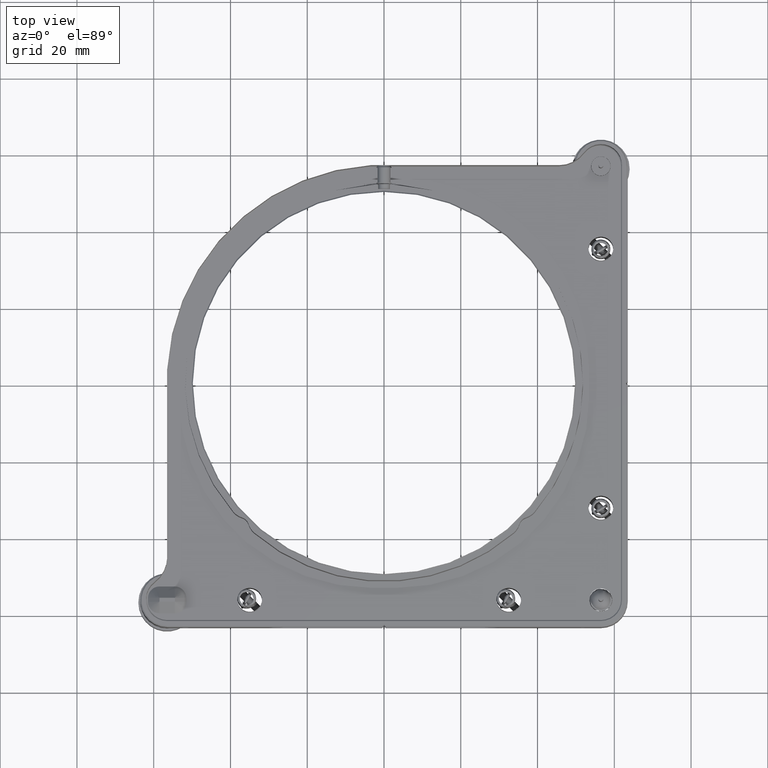
[diagram: clean part render]
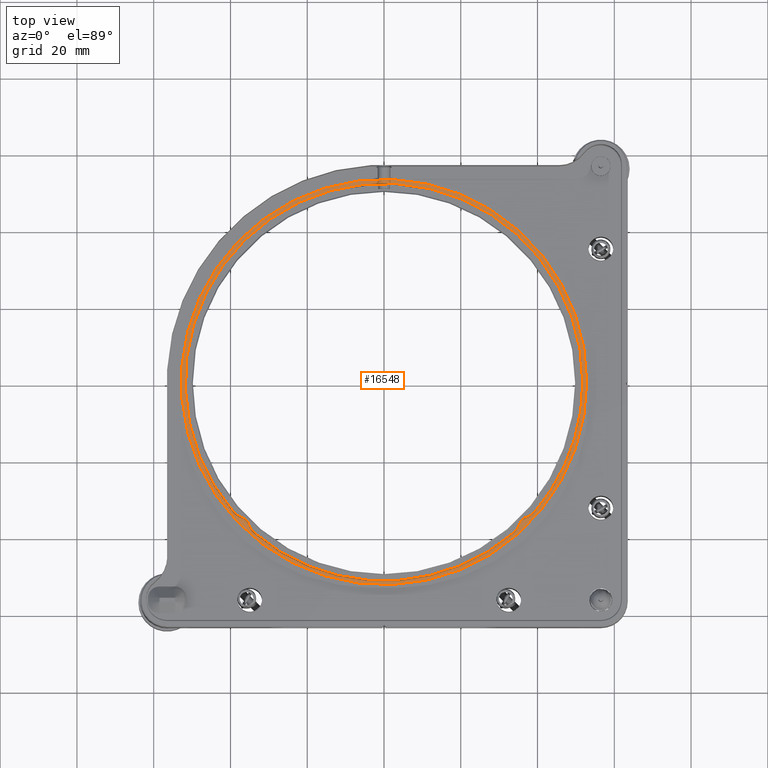
[diagram: same view with one face highlighted and labeled with its STEP entity id]
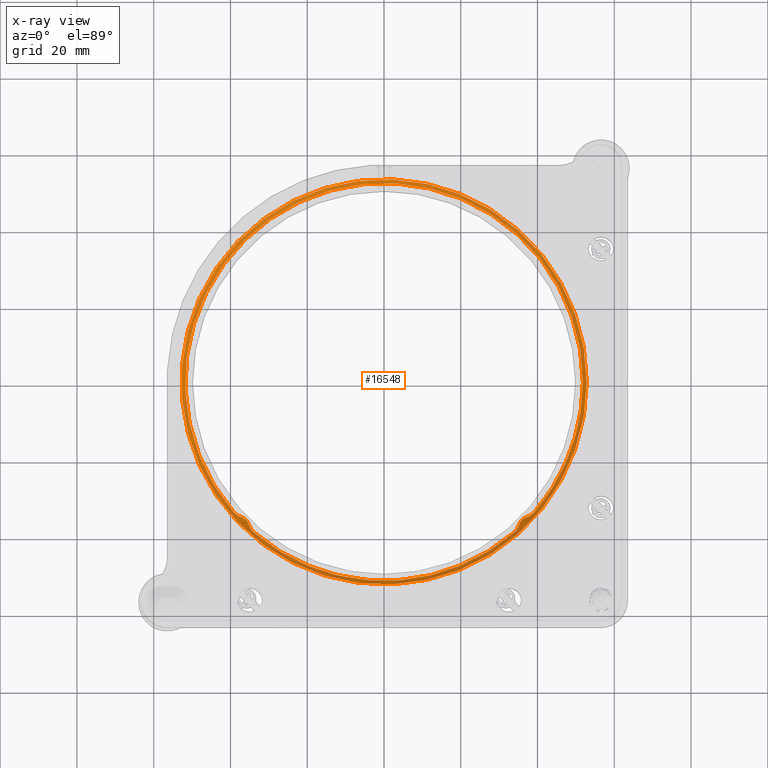
[diagram: x-ray of the same camera — body ghosted, the highlighted face saturated]
A machine part, top view. The second image highlights one B-rep face of the part: STEP entity #16548.
The next image is the same camera in x-ray: the body ghosted, the highlighted face saturated — about 0% of this face is hidden behind the body in this view.
In plain terms, the highlighted conical surface has half-angle 45 deg.
Its self-contained STEP definition (entity closure, byte-faithful):
#89 = DIRECTION ( 'NONE',  ( 1.000000000000000000, 0.000000000000000000, 0.000000000000000000 ) ) ;
#95 = CARTESIAN_POINT ( 'NONE',  ( 35.29995757403091261, -36.95158537787364139, 27.29818409675190694 ) ) ;
#217 = DIRECTION ( 'NONE',  ( -0.000000000000000000, -0.000000000000000000, -1.000000000000000000 ) ) ;
#420 = VERTEX_POINT ( 'NONE', #18705 ) ;
#430 = CARTESIAN_POINT ( 'NONE',  ( -39.26746954750443308, -33.78321825012833557, 27.99528137423851959 ) ) ;
#544 = VERTEX_POINT ( 'NONE', #4366 ) ;
#757 = CARTESIAN_POINT ( 'NONE',  ( -37.37060875329012788, -35.15547113101442989, 27.50244854800109451 ) ) ;
#868 = CARTESIAN_POINT ( 'NONE',  ( -38.94667884476185549, -34.15608501071348968, 27.99528137423852314 ) ) ;
#1025 = B_SPLINE_CURVE_WITH_KNOTS ( 'NONE', 3,
 ( #5897, #1106, #2548, #21177, #17853, #9356, #12603, #6003, #14175, #12823 ),
 .UNSPECIFIED., .F., .F.,
 ( 4, 2, 2, 2, 4 ),
 ( 0.000000000000000000, 0.0006293476167573521570, 0.001258695233514704314, 0.001888042850272056471, 0.002517390467029408628 ),
 .UNSPECIFIED. ) ;
#1106 = CARTESIAN_POINT ( 'NONE',  ( -36.76939526189891438, -35.35618235362806416, 27.20528367352485688 ) ) ;
#1157 = VERTEX_POINT ( 'NONE', #12605 ) ;
#1193 = DIRECTION ( 'NONE',  ( -0.000000000000000000, -0.000000000000000000, -1.000000000000000000 ) ) ;
#1661 = CARTESIAN_POINT ( 'NONE',  ( 34.96496681771093051, -37.78240385817564828, 27.67357583148771027 ) ) ;
#1772 = CARTESIAN_POINT ( 'NONE',  ( 34.15608501071374548, -38.94667884476174180, 27.99528137423851604 ) ) ;
#1887 = CARTESIAN_POINT ( 'NONE',  ( -35.29995757403078471, -36.95158537787364139, 27.29818409675191404 ) ) ;
#2032 = CARTESIAN_POINT ( 'NONE',  ( 38.38223373500233038, -34.59866715989296182, 27.86936724878509963 ) ) ;
#2108 = CARTESIAN_POINT ( 'NONE',  ( -36.95158537787375508, -35.29995757403067813, 27.29818409675191404 ) ) ;
#2117 = CARTESIAN_POINT ( 'NONE',  ( 36.23562109785029861, -35.64415303552976155, 27.02328998644421176 ) ) ;
#2392 = EDGE_CURVE ( 'NONE', #420, #11058, #10904, .T. ) ;
#2424 = CARTESIAN_POINT ( 'NONE',  ( -33.78321825012845636, -39.26746954750433360, 27.99528137423851959 ) ) ;
#2537 = CARTESIAN_POINT ( 'NONE',  ( -38.58479094772199858, -34.46788143922149317, 27.93125398582407470 ) ) ;
#2548 = CARTESIAN_POINT ( 'NONE',  ( -36.58971605337180932, -35.43397026461195054, 27.12988861879768976 ) ) ;
#3182 = CIRCLE ( 'NONE', #4921, 52.79999999999999716 ) ;
#3535 = B_SPLINE_CURVE_WITH_KNOTS ( 'NONE', 3,
 ( #14080, #5374, #7048, #18997, #2032, #7261, #3797, #12290 ),
 .UNSPECIFIED., .F., .F.,
 ( 4, 2, 2, 4 ),
 ( 0.000000000000000000, 0.0007250172066949754808, 0.001450034413389950962, 0.002900068826779885010 ),
 .UNSPECIFIED. ) ;
#3653 = VERTEX_POINT ( 'NONE', #1887 ) ;
#3797 = CARTESIAN_POINT ( 'NONE',  ( 37.37262727317183675, -35.17002194257384673, 27.51287724879373897 ) ) ;
#3875 = CARTESIAN_POINT ( 'NONE',  ( -35.29995757403078471, -36.95158537787364139, 27.29818409675191404 ) ) ;
#4079 = B_SPLINE_CURVE_WITH_KNOTS ( 'NONE', 3,
 ( #2424, #7671, #15949, #5555, #12699, #14051, #5661, #3875 ),
 .UNSPECIFIED., .F., .F.,
 ( 4, 2, 2, 4 ),
 ( 0.000000000000000000, 0.0007250172066949769987, 0.001450034413389953997, 0.002900068826779880239 ),
 .UNSPECIFIED. ) ;
#4208 = CARTESIAN_POINT ( 'NONE',  ( -37.98677989123937238, -34.85335435055007025, 27.74815942833220106 ) ) ;
#4259 = EDGE_CURVE ( 'NONE', #17116, #3653, #1025, .T. ) ;
#4366 = CARTESIAN_POINT ( 'NONE',  ( -33.78321825012845636, -39.26746954750433360, 27.99528137423851959 ) ) ;
#4581 = CARTESIAN_POINT ( 'NONE',  ( 35.64358551265987529, -36.23644232424491207, 27.02347813641312513 ) ) ;
#4921 = AXIS2_PLACEMENT_3D ( 'NONE', #12761, #21114, #19455 ) ;
#5220 = CARTESIAN_POINT ( 'NONE',  ( 6.418476861114183725E-14, 3.469446951953614189E-14, 28.99528137423851959 ) ) ;
#5374 = CARTESIAN_POINT ( 'NONE',  ( 39.10713320957748351, -33.96958303693742920, 27.99528137423852669 ) ) ;
#5555 = CARTESIAN_POINT ( 'NONE',  ( -34.45496883497718699, -38.57418188823015015, 27.91622437296075532 ) ) ;
#5661 = CARTESIAN_POINT ( 'NONE',  ( -35.17002194257394621, -37.37262727317163069, 27.51287724879375318 ) ) ;
#5897 = CARTESIAN_POINT ( 'NONE',  ( -36.95158537787375508, -35.29995757403067813, 27.29818409675191404 ) ) ;
#6003 = CARTESIAN_POINT ( 'NONE',  ( -35.43425788651857999, -36.58909661698183413, 27.12964306387160107 ) ) ;
#6497 = ORIENTED_EDGE ( 'NONE', *, *, #12882, .F. ) ;
#6806 = CARTESIAN_POINT ( 'NONE',  ( 35.35618235362828443, -36.76939526189880780, 27.20528367352484622 ) ) ;
#6912 = CARTESIAN_POINT ( 'NONE',  ( -36.95158537787375508, -35.29995757403067813, 27.29818409675191404 ) ) ;
#7048 = CARTESIAN_POINT ( 'NONE',  ( 38.93609058560081593, -34.14075877728822661, 27.97900583367317751 ) ) ;
#7140 = CARTESIAN_POINT ( 'NONE',  ( 36.95158537787385455, -35.29995757403069234, 27.29818409675190694 ) ) ;
#7261 = CARTESIAN_POINT ( 'NONE',  ( 37.78401053309116975, -34.98361422874764060, 27.68581232346270937 ) ) ;
#7291 = EDGE_CURVE ( 'NONE', #420, #19643, #20116, .T. ) ;
#7562 = CARTESIAN_POINT ( 'NONE',  ( -37.78240385817576907, -34.96496681771070314, 27.67357583148771383 ) ) ;
#7671 = CARTESIAN_POINT ( 'NONE',  ( -33.96958303693753578, -39.10713320957726324, 27.99528137423852669 ) ) ;
#7960 = ORIENTED_EDGE ( 'NONE', *, *, #9677, .F. ) ;
#8438 = DIRECTION ( 'NONE',  ( 1.000000000000000000, 0.000000000000000000, 0.000000000000000000 ) ) ;
#8469 = EDGE_LOOP ( 'NONE', ( #10259, #7960, #17714, #15403, #9137, #6497, #19526, #21394 ) ) ;
#8478 = CARTESIAN_POINT ( 'NONE',  ( 6.418476861114183725E-14, 3.361026734705063745E-14, 27.99528137423851248 ) ) ;
#8599 = CARTESIAN_POINT ( 'NONE',  ( 36.06977932261627018, -35.77211366271082937, 26.99516564945040287 ) ) ;
#9137 = ORIENTED_EDGE ( 'NONE', *, *, #18424, .F. ) ;
#9356 = CARTESIAN_POINT ( 'NONE',  ( -35.77211366271093596, -36.06977932261606412, 26.99516564945040642 ) ) ;
#9400 = B_SPLINE_CURVE_WITH_KNOTS ( 'NONE', 3,
 ( #2108, #16056, #757, #7562, #4208, #2537, #868, #430 ),
 .UNSPECIFIED., .F., .F.,
 ( 4, 2, 2, 4 ),
 ( 0.000000000000000000, 0.0007273798080594016209, 0.001454759616118803242, 0.002909519232237612121 ),
 .UNSPECIFIED. ) ;
#9677 = EDGE_CURVE ( 'NONE', #18460, #1157, #19816, .T. ) ;
#10259 = ORIENTED_EDGE ( 'NONE', *, *, #20825, .F. ) ;
#10659 = CONICAL_SURFACE ( 'NONE', #13874, 52.79999999999999716, 0.7853981633974500554 ) ;
#10904 = B_SPLINE_CURVE_WITH_KNOTS ( 'NONE', 3,
 ( #95, #17176, #16954, #1661, #15289, #18740, #1772, #13498 ),
 .UNSPECIFIED., .F., .F.,
 ( 4, 2, 2, 4 ),
 ( 0.000000000000000000, 0.0007273798080593996693, 0.001454759616118799339, 0.002909519232237604315 ),
 .UNSPECIFIED. ) ;
#11058 = VERTEX_POINT ( 'NONE', #19264 ) ;
#11949 = CARTESIAN_POINT ( 'NONE',  ( 36.58909661698204019, -35.43425788651847341, 27.12964306387159752 ) ) ;
#12169 = CARTESIAN_POINT ( 'NONE',  ( 36.76933059938689041, -35.35620230880221015, 27.20525070151256131 ) ) ;
#12290 = CARTESIAN_POINT ( 'NONE',  ( 36.95158537787385455, -35.29995757403069234, 27.29818409675190694 ) ) ;
#12371 = DIRECTION ( 'NONE',  ( 1.000000000000000000, 0.000000000000000000, 0.000000000000000000 ) ) ;
#12603 = CARTESIAN_POINT ( 'NONE',  ( -35.64415303552986103, -36.23562109785007834, 27.02328998644421532 ) ) ;
#12605 = CARTESIAN_POINT ( 'NONE',  ( 39.26746954750453966, -33.78321825012834978, 27.99528137423851604 ) ) ;
#12699 = CARTESIAN_POINT ( 'NONE',  ( -34.59866715989305419, -38.38223373500212432, 27.86936724878509963 ) ) ;
#12761 = CARTESIAN_POINT ( 'NONE',  ( 6.418476861114183725E-14, 3.469446951953614189E-14, 28.99528137423851959 ) ) ;
#12823 = CARTESIAN_POINT ( 'NONE',  ( -35.29995757403078471, -36.95158537787364139, 27.29818409675191404 ) ) ;
#12882 = EDGE_CURVE ( 'NONE', #11058, #544, #18091, .T. ) ;
#13352 = ORIENTED_EDGE ( 'NONE', *, *, #15065, .T. ) ;
#13498 = CARTESIAN_POINT ( 'NONE',  ( 33.78321825012859136, -39.26746954750431939, 27.99528137423851248 ) ) ;
#13823 = DIRECTION ( 'NONE',  ( 0.000000000000000000, 0.000000000000000000, 1.000000000000000000 ) ) ;
#13874 = AXIS2_PLACEMENT_3D ( 'NONE', #5220, #13823, #89 ) ;
#14051 = CARTESIAN_POINT ( 'NONE',  ( -34.98361422874774007, -37.78401053309096369, 27.68581232346272714 ) ) ;
#14080 = CARTESIAN_POINT ( 'NONE',  ( 39.26746954750453966, -33.78321825012834978, 27.99528137423851604 ) ) ;
#14175 = CARTESIAN_POINT ( 'NONE',  ( -35.35620230880232384, -36.76933059938669857, 27.20525070151257196 ) ) ;
#15054 = VERTEX_POINT ( 'NONE', #21826 ) ;
#15065 = EDGE_CURVE ( 'NONE', #15054, #15054, #3182, .T. ) ;
#15289 = CARTESIAN_POINT ( 'NONE',  ( 34.85335435055030473, -37.98677989123925869, 27.74815942833219040 ) ) ;
#15403 = ORIENTED_EDGE ( 'NONE', *, *, #4259, .T. ) ;
#15509 = FACE_OUTER_BOUND ( 'NONE', #19457, .T. ) ;
#15567 = AXIS2_PLACEMENT_3D ( 'NONE', #8478, #217, #12371 ) ;
#15949 = CARTESIAN_POINT ( 'NONE',  ( -34.14075877728834740, -38.93609058560061698, 27.97900583367318461 ) ) ;
#16056 = CARTESIAN_POINT ( 'NONE',  ( -37.16221248660495746, -35.23495699646213808, 27.40558480528936158 ) ) ;
#16548 = ADVANCED_FACE ( 'NONE', ( #17060, #15509 ), #10659, .T. ) ;
#16954 = CARTESIAN_POINT ( 'NONE',  ( 35.15547113101466437, -37.37060875328999998, 27.50244854800109451 ) ) ;
#17060 = FACE_BOUND ( 'NONE', #8469, .T. ) ;
#17116 = VERTEX_POINT ( 'NONE', #6912 ) ;
#17176 = CARTESIAN_POINT ( 'NONE',  ( 35.23495699646237966, -37.16221248660483667, 27.40558480528936869 ) ) ;
#17498 = EDGE_CURVE ( 'NONE', #17116, #18460, #9400, .T. ) ;
#17714 = ORIENTED_EDGE ( 'NONE', *, *, #17498, .F. ) ;
#17853 = CARTESIAN_POINT ( 'NONE',  ( -36.07178275398495515, -35.77042316265070099, 26.99539781485876233 ) ) ;
#18049 = CARTESIAN_POINT ( 'NONE',  ( 6.418476861114183725E-14, 3.361026734705063745E-14, 27.99528137423851248 ) ) ;
#18091 = CIRCLE ( 'NONE', #20582, 51.79999999999999005 ) ;
#18424 = EDGE_CURVE ( 'NONE', #544, #3653, #4079, .T. ) ;
#18460 = VERTEX_POINT ( 'NONE', #19837 ) ;
#18645 = CARTESIAN_POINT ( 'NONE',  ( 35.29995757403091261, -36.95158537787364139, 27.29818409675190694 ) ) ;
#18705 = CARTESIAN_POINT ( 'NONE',  ( 35.29995757403091261, -36.95158537787364139, 27.29818409675190694 ) ) ;
#18740 = CARTESIAN_POINT ( 'NONE',  ( 34.46788143922172054, -38.58479094772187779, 27.93125398582406405 ) ) ;
#18760 = CARTESIAN_POINT ( 'NONE',  ( 35.77042316265094257, -36.07178275398486278, 26.99539781485876588 ) ) ;
#18997 = CARTESIAN_POINT ( 'NONE',  ( 38.57418188823036331, -34.45496883497708041, 27.91622437296076598 ) ) ;
#19264 = CARTESIAN_POINT ( 'NONE',  ( 33.78321825012859136, -39.26746954750431939, 27.99528137423851248 ) ) ;
#19455 = DIRECTION ( 'NONE',  ( 1.000000000000000000, 0.000000000000000000, 0.000000000000000000 ) ) ;
#19457 = EDGE_LOOP ( 'NONE', ( #13352 ) ) ;
#19526 = ORIENTED_EDGE ( 'NONE', *, *, #2392, .F. ) ;
#19643 = VERTEX_POINT ( 'NONE', #21592 ) ;
#19816 = CIRCLE ( 'NONE', #15567, 51.79999999999999005 ) ;
#19837 = CARTESIAN_POINT ( 'NONE',  ( -39.26746954750443308, -33.78321825012833557, 27.99528137423851959 ) ) ;
#19875 = CARTESIAN_POINT ( 'NONE',  ( 35.43397026461218502, -36.58971605337170274, 27.12988861879768621 ) ) ;
#20116 = B_SPLINE_CURVE_WITH_KNOTS ( 'NONE', 3,
 ( #18645, #6806, #19875, #4581, #18760, #8599, #2117, #11949, #12169, #7140 ),
 .UNSPECIFIED., .F., .F.,
 ( 4, 2, 2, 2, 4 ),
 ( 0.000000000000000000, 0.0006293476167573439171, 0.001258695233514687834, 0.001888042850272031751, 0.002517390467029375668 ),
 .UNSPECIFIED. ) ;
#20582 = AXIS2_PLACEMENT_3D ( 'NONE', #18049, #1193, #8438 ) ;
#20825 = EDGE_CURVE ( 'NONE', #1157, #19643, #3535, .T. ) ;
#21114 = DIRECTION ( 'NONE',  ( -0.000000000000000000, -0.000000000000000000, -1.000000000000000000 ) ) ;
#21177 = CARTESIAN_POINT ( 'NONE',  ( -36.23644232424503286, -35.64358551265965502, 27.02347813641313223 ) ) ;
#21394 = ORIENTED_EDGE ( 'NONE', *, *, #7291, .T. ) ;
#21592 = CARTESIAN_POINT ( 'NONE',  ( 36.95158537787385455, -35.29995757403069234, 27.29818409675190694 ) ) ;
#21826 = CARTESIAN_POINT ( 'NONE',  ( 52.80000000000006111, 3.469446951953614189E-14, 28.99528137423851959 ) ) ;